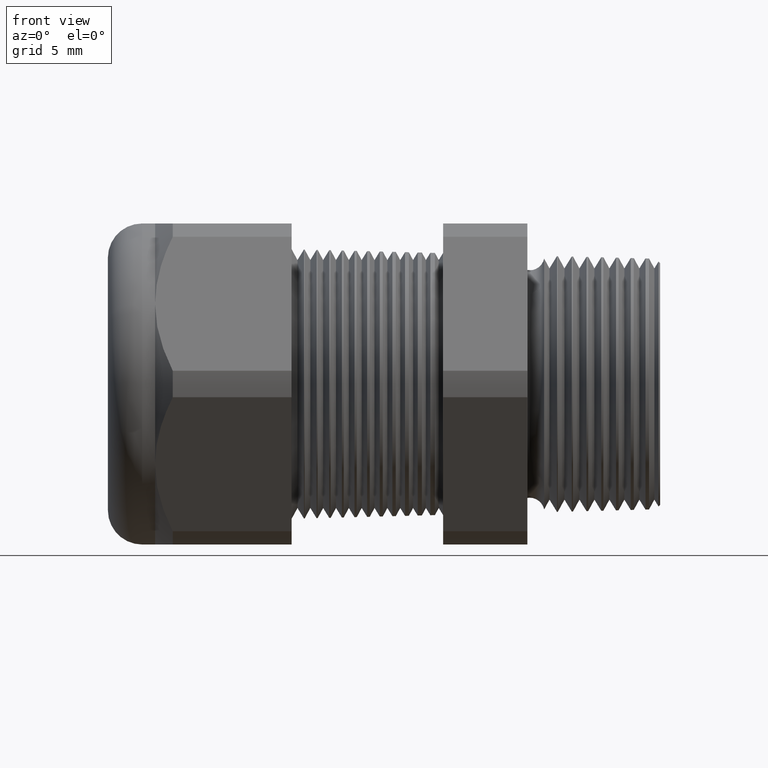
[diagram: clean part render]
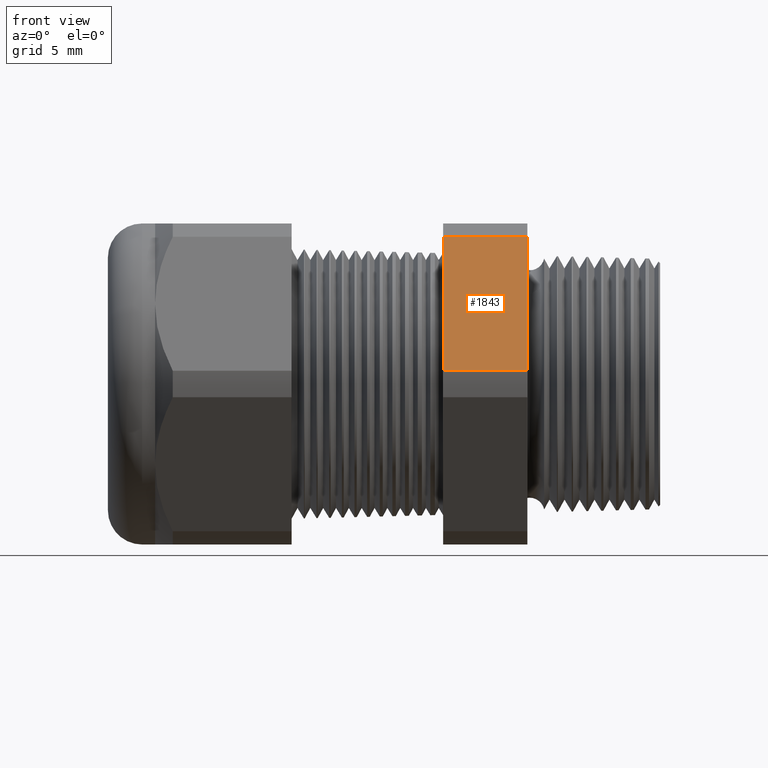
[diagram: same view with one face highlighted and labeled with its STEP entity id]
A machine part, front view. The second image highlights one B-rep face of the part: STEP entity #1843.
In plain terms, the highlighted planar face has unit normal (0, -0.866, 0.5).
Its self-contained STEP definition (entity closure, byte-faithful):
#1663 = VERTEX_POINT ( 'NONE', #3864 ) ;
#1665 = EDGE_CURVE ( 'NONE', #1663, #1666, #3928, .T. ) ;
#1666 = VERTEX_POINT ( 'NONE', #3924 ) ;
#1770 = EDGE_CURVE ( 'NONE', #1663, #1771, #4075, .T. ) ;
#1771 = VERTEX_POINT ( 'NONE', #4071 ) ;
#1772 = ORIENTED_EDGE ( 'NONE', *, *, #1773, .F. ) ;
#1773 = EDGE_CURVE ( 'NONE', #1788, #1771, #3818, .T. ) ;
#1787 = EDGE_CURVE ( 'NONE', #1666, #1788, #4117, .T. ) ;
#1788 = VERTEX_POINT ( 'NONE', #4109 ) ;
#1843 = ADVANCED_FACE ( 'NONE', ( #4262 ), #4261, .T. ) ;
#1844 = EDGE_LOOP ( 'NONE', ( #1845, #1846, #1847, #1772 ) ) ;
#1845 = ORIENTED_EDGE ( 'NONE', *, *, #1787, .F. ) ;
#1846 = ORIENTED_EDGE ( 'NONE', *, *, #1665, .F. ) ;
#1847 = ORIENTED_EDGE ( 'NONE', *, *, #1770, .T. ) ;
#3815 = CARTESIAN_POINT ( 'NONE',  ( -0.5068503937007874400, -0.1372595264191648300, 0.5122595264191645000 ) ) ;
#3818 = LINE ( 'NONE', #3815, #4136 ) ;
#3864 = CARTESIAN_POINT ( 'NONE',  ( -0.3100000000000000000, -0.2344281053908205100, 0.3439586107409878200 ) ) ;
#3924 = CARTESIAN_POINT ( 'NONE',  ( -0.3100000000000000000, -0.4150909474475088000, 0.03104138925901241800 ) ) ;
#3925 = DIRECTION ( 'NONE',  ( 0.0000000000000000000, -0.4999999999999998300, -0.8660254037844386000 ) ) ;
#3926 = VECTOR ( 'NONE', #3925, 39.37007874015748900 ) ;
#3927 = CARTESIAN_POINT ( 'NONE',  ( -0.3100000000000000000, -0.1372595264191648300, 0.5122595264191645000 ) ) ;
#3928 = LINE ( 'NONE', #3927, #3926 ) ;
#4071 = CARTESIAN_POINT ( 'NONE',  ( -0.5068503937007874400, -0.2344281053908205100, 0.3439586107409878200 ) ) ;
#4072 = DIRECTION ( 'NONE',  ( -1.000000000000000000, 0.0000000000000000000, 0.0000000000000000000 ) ) ;
#4073 = VECTOR ( 'NONE', #4072, 39.37007874015748100 ) ;
#4074 = CARTESIAN_POINT ( 'NONE',  ( 0.0000000000000000000, -0.2344281053908205100, 0.3439586107409878200 ) ) ;
#4075 = LINE ( 'NONE', #4074, #4073 ) ;
#4109 = CARTESIAN_POINT ( 'NONE',  ( -0.5068503937007874400, -0.4150909474475088000, 0.03104138925901241800 ) ) ;
#4110 = DIRECTION ( 'NONE',  ( -1.000000000000000000, 0.0000000000000000000, 0.0000000000000000000 ) ) ;
#4111 = VECTOR ( 'NONE', #4110, 39.37007874015748100 ) ;
#4112 = CARTESIAN_POINT ( 'NONE',  ( 0.0000000000000000000, -0.4150909474475088000, 0.03104138925901241800 ) ) ;
#4117 = LINE ( 'NONE', #4112, #4111 ) ;
#4135 = DIRECTION ( 'NONE',  ( 0.0000000000000000000, 0.4999999999999998300, 0.8660254037844386000 ) ) ;
#4136 = VECTOR ( 'NONE', #4135, 39.37007874015748900 ) ;
#4257 = DIRECTION ( 'NONE',  ( 0.0000000000000000000, -0.4999999999999998300, -0.8660254037844386000 ) ) ;
#4258 = DIRECTION ( 'NONE',  ( 0.0000000000000000000, -0.8660254037844387100, 0.4999999999999998900 ) ) ;
#4259 = CARTESIAN_POINT ( 'NONE',  ( 0.0000000000000000000, -0.4150909474475088000, 0.03104138925901233800 ) ) ;
#4260 = AXIS2_PLACEMENT_3D ( 'NONE', #4259, #4258, #4257 ) ;
#4261 = PLANE ( 'NONE',  #4260 ) ;
#4262 = FACE_OUTER_BOUND ( 'NONE', #1844, .T. ) ;